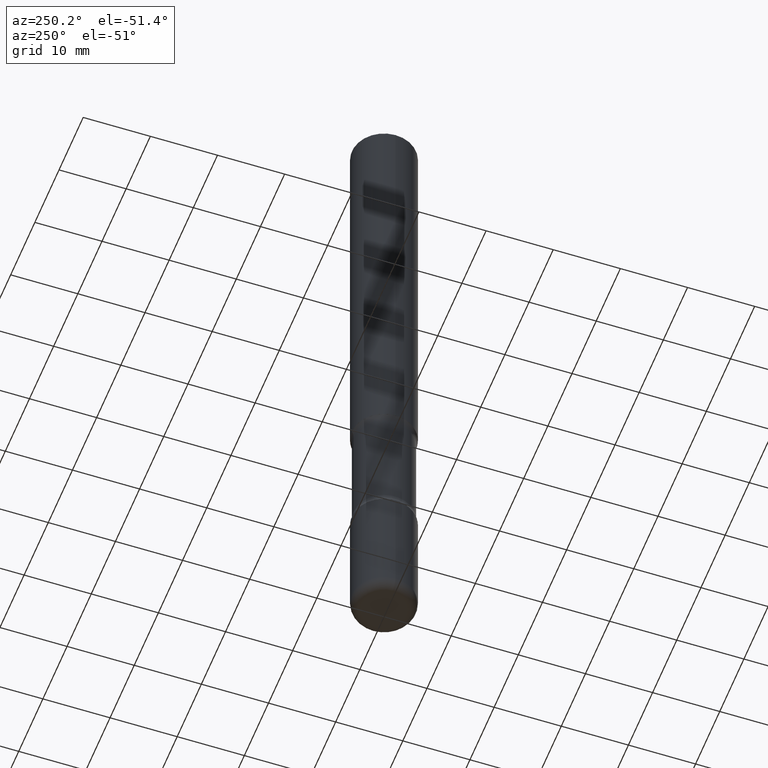
[diagram: clean part render]
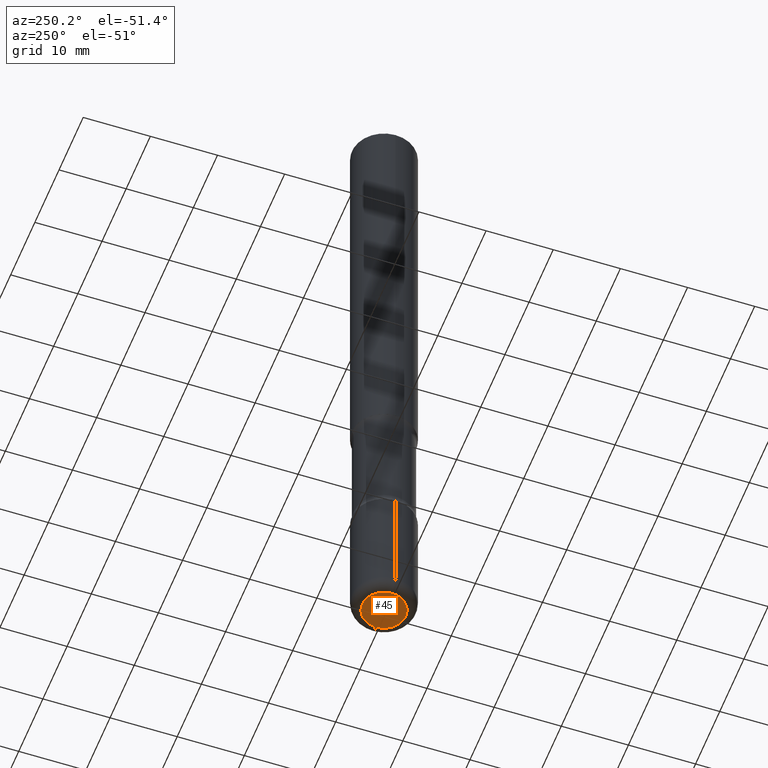
[diagram: same view with one face highlighted and labeled with its STEP entity id]
A machine part, auxiliary view. The second image highlights one B-rep face of the part: STEP entity #45.
In plain terms, the highlighted planar face has unit normal (0, -0, -1).
Its self-contained STEP definition (entity closure, byte-faithful):
#7 = VERTEX_POINT ( 'NONE', #134 ) ;
#45 = ADVANCED_FACE ( 'NONE', ( #482 ), #91, .T. ) ;
#60 = ORIENTED_EDGE ( 'NONE', *, *, #429, .F. ) ;
#91 = PLANE ( 'NONE',  #258 ) ;
#134 = CARTESIAN_POINT ( 'NONE',  ( -0.1275000000000001132, -1.274207610638512978E-14, -4.000000000000000000 ) ) ;
#155 = CARTESIAN_POINT ( 'NONE',  ( 9.781875224740546387E-29, -1.396592535537258233E-14, -4.000000000000000000 ) ) ;
#168 = CIRCLE ( 'NONE', #547, 0.1275000000000001132 ) ;
#193 = EDGE_LOOP ( 'NONE', ( #60, #211 ) ) ;
#209 = CIRCLE ( 'NONE', #534, 0.1275000000000001132 ) ;
#211 = ORIENTED_EDGE ( 'NONE', *, *, #331, .F. ) ;
#215 = DIRECTION ( 'NONE',  ( 1.000000000000000000, -6.982962677686269866E-15, 0.000000000000000000 ) ) ;
#231 = DIRECTION ( 'NONE',  ( -1.000000000000000000, 6.982962677686265922E-15, -4.876176775795935793E-29 ) ) ;
#258 = AXIS2_PLACEMENT_3D ( 'NONE', #315, #515, #231 ) ;
#315 = CARTESIAN_POINT ( 'NONE',  ( 9.781875224740546387E-29, -1.396592535537258233E-14, -4.000000000000000000 ) ) ;
#331 = EDGE_CURVE ( 'NONE', #7, #355, #168, .T. ) ;
#333 = DIRECTION ( 'NONE',  ( -2.445468806185136597E-29, 3.491481338843145583E-15, 1.000000000000000000 ) ) ;
#336 = DIRECTION ( 'NONE',  ( 1.000000000000000000, -6.982962677686269866E-15, 0.000000000000000000 ) ) ;
#355 = VERTEX_POINT ( 'NONE', #496 ) ;
#429 = EDGE_CURVE ( 'NONE', #355, #7, #209, .T. ) ;
#443 = DIRECTION ( 'NONE',  ( -2.445468806185136597E-29, 3.491481338843145583E-15, 1.000000000000000000 ) ) ;
#482 = FACE_OUTER_BOUND ( 'NONE', #193, .T. ) ;
#496 = CARTESIAN_POINT ( 'NONE',  ( 0.1275000000000001132, -1.485625309677758386E-14, -4.000000000000000000 ) ) ;
#515 = DIRECTION ( 'NONE',  ( 2.438088387897960049E-29, -3.491481338843145188E-15, -1.000000000000000000 ) ) ;
#534 = AXIS2_PLACEMENT_3D ( 'NONE', #540, #443, #336 ) ;
#540 = CARTESIAN_POINT ( 'NONE',  ( 9.781875224740546387E-29, -1.396592535537258233E-14, -4.000000000000000000 ) ) ;
#547 = AXIS2_PLACEMENT_3D ( 'NONE', #155, #333, #215 ) ;